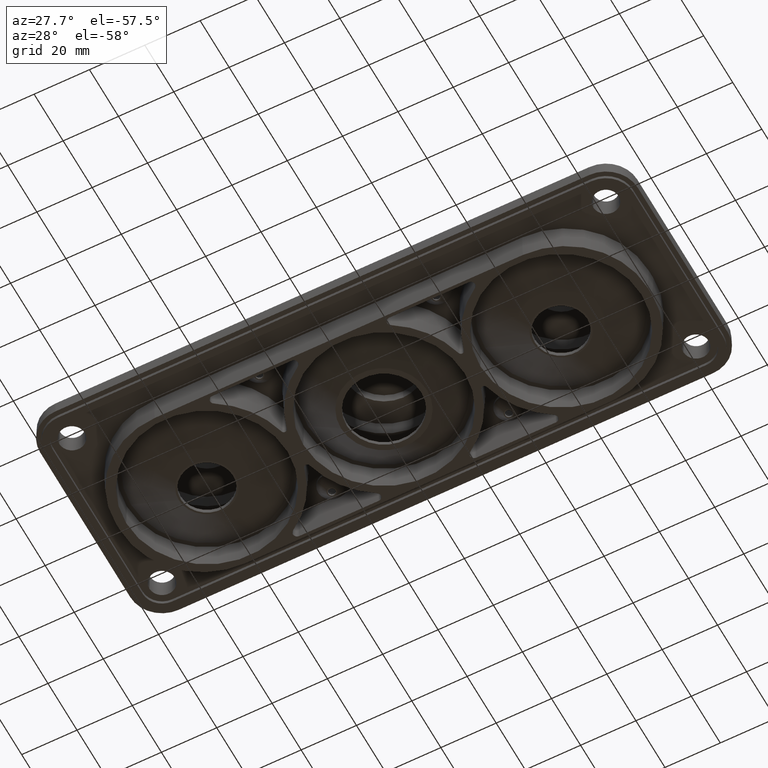
[diagram: clean part render]
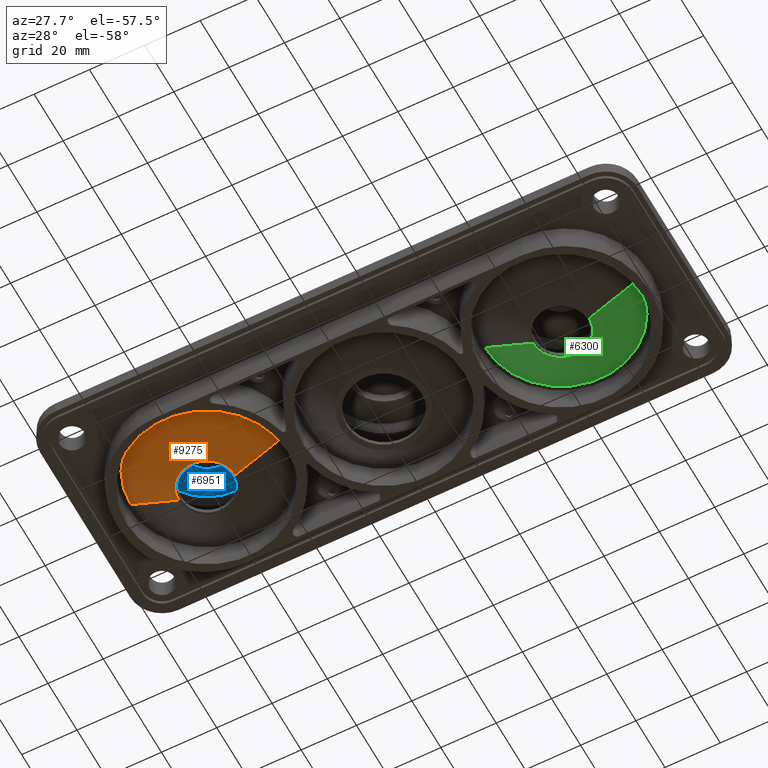
[diagram: same view with three faces highlighted in distinct colors, each labeled with its STEP entity id]
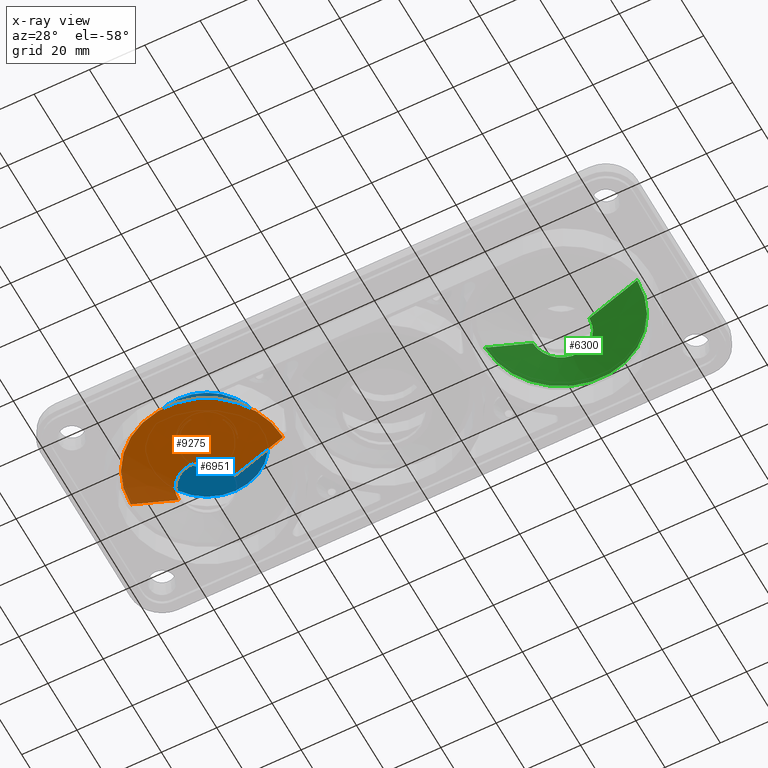
[diagram: x-ray of the same camera — body ghosted, the three highlighted faces saturated]
A machine part, auxiliary view with three faces highlighted in distinct colors.
The next image is the same camera in x-ray (body ghosted, the three faces saturated) — at least one of them is partly hidden behind the body in this view.
Their STEP definitions:

[orange] entity #9275 — the highlighted conical surface has half-angle 60 deg.
#1102 = DIRECTION ( 'NONE',  ( 0.0000000000000000000, -0.0000000000000000000, 1.000000000000000000 ) ) ;
#1393 = AXIS2_PLACEMENT_3D ( 'NONE', #3083, #4703, #5457 ) ;
#1728 = ORIENTED_EDGE ( 'NONE', *, *, #5568, .F. ) ;
#1838 = AXIS2_PLACEMENT_3D ( 'NONE', #5201, #2955, #8267 ) ;
#2141 = VECTOR ( 'NONE', #6616, 1000.000000000000100 ) ;
#2161 = LINE ( 'NONE', #8777, #8943 ) ;
#2401 = FACE_OUTER_BOUND ( 'NONE', #9833, .T. ) ;
#2955 = DIRECTION ( 'NONE',  ( -0.0000000000000000000, 0.0000000000000000000, -1.000000000000000000 ) ) ;
#3032 = CIRCLE ( 'NONE', #1393, 10.17949192431123800 ) ;
#3083 = CARTESIAN_POINT ( 'NONE',  ( 58.53819617907976900, 259.8491220038597500, -10.00000000000000200 ) ) ;
#3230 = CONICAL_SURFACE ( 'NONE', #9699, 27.50000000000001100, 1.047197551196597400 ) ;
#3274 = EDGE_CURVE ( 'NONE', #4058, #7190, #3032, .T. ) ;
#3683 = LINE ( 'NONE', #5913, #2141 ) ;
#4058 = VERTEX_POINT ( 'NONE', #4564 ) ;
#4166 = DIRECTION ( 'NONE',  ( 1.000000000000000000, 0.0000000000000000000, 0.0000000000000000000 ) ) ;
#4564 = CARTESIAN_POINT ( 'NONE',  ( 48.35870425476852600, 259.8491220038597500, -10.00000000000000200 ) ) ;
#4703 = DIRECTION ( 'NONE',  ( 0.0000000000000000000, -0.0000000000000000000, 1.000000000000000000 ) ) ;
#4906 = DIRECTION ( 'NONE',  ( -0.8660254037844383700, 1.060575238724906500E-016, 0.5000000000000003300 ) ) ;
#5201 = CARTESIAN_POINT ( 'NONE',  ( 58.53819617907976900, 259.8491220038597500, 3.025293974139501800E-015 ) ) ;
#5457 = DIRECTION ( 'NONE',  ( 1.000000000000000000, 0.0000000000000000000, 0.0000000000000000000 ) ) ;
#5568 = EDGE_CURVE ( 'NONE', #4058, #8293, #2161, .T. ) ;
#5877 = CARTESIAN_POINT ( 'NONE',  ( 31.03819617907976200, 259.8491220038597500, 3.025293974139501800E-015 ) ) ;
#5913 = CARTESIAN_POINT ( 'NONE',  ( 86.03819617907977600, 259.8491220038597500, 7.031466237438596000E-015 ) ) ;
#6179 = CARTESIAN_POINT ( 'NONE',  ( 86.03819617907976200, 259.8491220038597500, 3.025293974139501800E-015 ) ) ;
#6414 = ORIENTED_EDGE ( 'NONE', *, *, #9668, .T. ) ;
#6542 = ORIENTED_EDGE ( 'NONE', *, *, #3274, .T. ) ;
#6616 = DIRECTION ( 'NONE',  ( 0.8660254037844383700, 0.0000000000000000000, 0.5000000000000003300 ) ) ;
#6673 = CIRCLE ( 'NONE', #1838, 27.49999999999999600 ) ;
#7190 = VERTEX_POINT ( 'NONE', #7814 ) ;
#7814 = CARTESIAN_POINT ( 'NONE',  ( 68.71768810339099800, 259.8491220038597500, -10.00000000000000200 ) ) ;
#7881 = ORIENTED_EDGE ( 'NONE', *, *, #8011, .T. ) ;
#8011 = EDGE_CURVE ( 'NONE', #9584, #8293, #6673, .T. ) ;
#8267 = DIRECTION ( 'NONE',  ( 1.000000000000000000, 0.0000000000000000000, 0.0000000000000000000 ) ) ;
#8293 = VERTEX_POINT ( 'NONE', #5877 ) ;
#8656 = CARTESIAN_POINT ( 'NONE',  ( 58.53819617907976900, 259.8491220038597500, 7.031466237438596000E-015 ) ) ;
#8777 = CARTESIAN_POINT ( 'NONE',  ( 31.03819617907975500, 259.8491220038597500, 7.031466237438596000E-015 ) ) ;
#8943 = VECTOR ( 'NONE', #4906, 1000.000000000000100 ) ;
#9275 = ADVANCED_FACE ( 'NONE', ( #2401 ), #3230, .T. ) ;
#9584 = VERTEX_POINT ( 'NONE', #6179 ) ;
#9668 = EDGE_CURVE ( 'NONE', #7190, #9584, #3683, .T. ) ;
#9699 = AXIS2_PLACEMENT_3D ( 'NONE', #8656, #1102, #4166 ) ;
#9833 = EDGE_LOOP ( 'NONE', ( #1728, #6542, #6414, #7881 ) ) ;

[blue] entity #6951 — the highlighted planar face has unit normal (0, 0, 1).
#216 = FACE_BOUND ( 'NONE', #816, .T. ) ;
#596 = AXIS2_PLACEMENT_3D ( 'NONE', #2111, #4372, #2851 ) ;
#662 = PLANE ( 'NONE',  #4192 ) ;
#801 = EDGE_CURVE ( 'NONE', #9273, #1055, #5809, .T. ) ;
#816 = EDGE_LOOP ( 'NONE', ( #8688, #4920 ) ) ;
#909 = CARTESIAN_POINT ( 'NONE',  ( 58.53819617907976900, 259.8491220038597500, 15.50000000000001400 ) ) ;
#946 = CARTESIAN_POINT ( 'NONE',  ( 58.53819617907976900, 268.8776916157211200, 15.50000000000001400 ) ) ;
#1055 = VERTEX_POINT ( 'NONE', #946 ) ;
#1396 = DIRECTION ( 'NONE',  ( 1.000000000000000000, 0.0000000000000000000, -0.0000000000000000000 ) ) ;
#1560 = AXIS2_PLACEMENT_3D ( 'NONE', #909, #4598, #2418 ) ;
#1951 = CARTESIAN_POINT ( 'NONE',  ( 58.53819617907976900, 250.8205523919983500, 15.50000000000001400 ) ) ;
#2008 = DIRECTION ( 'NONE',  ( 0.0000000000000000000, 1.000000000000000000, 0.0000000000000000000 ) ) ;
#2111 = CARTESIAN_POINT ( 'NONE',  ( 58.53819617907976900, 259.8491220038597500, 15.50000000000001400 ) ) ;
#2137 = AXIS2_PLACEMENT_3D ( 'NONE', #8309, #9087, #5984 ) ;
#2418 = DIRECTION ( 'NONE',  ( 0.0000000000000000000, 1.000000000000000000, 0.0000000000000000000 ) ) ;
#2825 = ORIENTED_EDGE ( 'NONE', *, *, #3467, .T. ) ;
#2851 = DIRECTION ( 'NONE',  ( 0.0000000000000000000, 1.000000000000000000, 0.0000000000000000000 ) ) ;
#3210 = EDGE_CURVE ( 'NONE', #1055, #9273, #3988, .T. ) ;
#3467 = EDGE_CURVE ( 'NONE', #9646, #8054, #8126, .T. ) ;
#3856 = CARTESIAN_POINT ( 'NONE',  ( 58.53819617907976900, 240.1196755102471100, 15.50000000000006900 ) ) ;
#3988 = CIRCLE ( 'NONE', #1560, 9.028569611861382100 ) ;
#4139 = ORIENTED_EDGE ( 'NONE', *, *, #4895, .T. ) ;
#4192 = AXIS2_PLACEMENT_3D ( 'NONE', #9091, #5988, #1396 ) ;
#4358 = CARTESIAN_POINT ( 'NONE',  ( 58.53819617907976900, 279.5785684974723600, 15.50000000000006900 ) ) ;
#4372 = DIRECTION ( 'NONE',  ( 0.0000000000000000000, 9.606856625980890600E-017, -1.000000000000000000 ) ) ;
#4598 = DIRECTION ( 'NONE',  ( 0.0000000000000000000, 9.606856625980890600E-017, -1.000000000000000000 ) ) ;
#4895 = EDGE_CURVE ( 'NONE', #8054, #9646, #6231, .T. ) ;
#4920 = ORIENTED_EDGE ( 'NONE', *, *, #801, .F. ) ;
#5057 = AXIS2_PLACEMENT_3D ( 'NONE', #5075, #9551, #2008 ) ;
#5075 = CARTESIAN_POINT ( 'NONE',  ( 58.53819617907976900, 259.8491220038597500, 15.50000000000006900 ) ) ;
#5809 = CIRCLE ( 'NONE', #596, 9.028569611861382100 ) ;
#5984 = DIRECTION ( 'NONE',  ( 0.0000000000000000000, 1.000000000000000000, 0.0000000000000000000 ) ) ;
#5988 = DIRECTION ( 'NONE',  ( 0.0000000000000000000, 0.0000000000000000000, 1.000000000000000000 ) ) ;
#6231 = CIRCLE ( 'NONE', #5057, 19.72944649361263500 ) ;
#6650 = EDGE_LOOP ( 'NONE', ( #2825, #4139 ) ) ;
#6737 = FACE_OUTER_BOUND ( 'NONE', #6650, .T. ) ;
#6951 = ADVANCED_FACE ( 'NONE', ( #6737, #216 ), #662, .F. ) ;
#8054 = VERTEX_POINT ( 'NONE', #3856 ) ;
#8126 = CIRCLE ( 'NONE', #2137, 19.72944649361263500 ) ;
#8309 = CARTESIAN_POINT ( 'NONE',  ( 58.53819617907976900, 259.8491220038597500, 15.50000000000006900 ) ) ;
#8688 = ORIENTED_EDGE ( 'NONE', *, *, #3210, .F. ) ;
#9087 = DIRECTION ( 'NONE',  ( 0.0000000000000000000, 4.374991570907314600E-017, -1.000000000000000000 ) ) ;
#9091 = CARTESIAN_POINT ( 'NONE',  ( 78.53819617907977600, 259.8491220038597500, 15.50000000000000000 ) ) ;
#9273 = VERTEX_POINT ( 'NONE', #1951 ) ;
#9551 = DIRECTION ( 'NONE',  ( 0.0000000000000000000, 4.374991570907314600E-017, -1.000000000000000000 ) ) ;
#9646 = VERTEX_POINT ( 'NONE', #4358 ) ;

[green] entity #6300 — the highlighted conical surface has half-angle 60 deg.
#91 = ORIENTED_EDGE ( 'NONE', *, *, #186, .F. ) ;
#186 = EDGE_CURVE ( 'NONE', #5922, #6131, #9642, .T. ) ;
#283 = EDGE_CURVE ( 'NONE', #4528, #4459, #3217, .T. ) ;
#329 = DIRECTION ( 'NONE',  ( 0.0000000000000000000, -0.0000000000000000000, 1.000000000000000000 ) ) ;
#599 = EDGE_CURVE ( 'NONE', #5922, #4528, #6422, .T. ) ;
#820 = CARTESIAN_POINT ( 'NONE',  ( 214.0381961790797300, 259.8491220038597500, -1.602468905319637700E-014 ) ) ;
#887 = AXIS2_PLACEMENT_3D ( 'NONE', #6391, #329, #1034 ) ;
#1034 = DIRECTION ( 'NONE',  ( 1.000000000000000000, 0.0000000000000000000, 0.0000000000000000000 ) ) ;
#1214 = VECTOR ( 'NONE', #7626, 1000.000000000000100 ) ;
#1795 = DIRECTION ( 'NONE',  ( 1.000000000000000000, 0.0000000000000000000, 0.0000000000000000000 ) ) ;
#1877 = AXIS2_PLACEMENT_3D ( 'NONE', #7879, #8625, #1795 ) ;
#2037 = DIRECTION ( 'NONE',  ( 0.0000000000000000000, -0.0000000000000000000, 1.000000000000000000 ) ) ;
#2397 = ORIENTED_EDGE ( 'NONE', *, *, #283, .T. ) ;
#3217 = LINE ( 'NONE', #9177, #1214 ) ;
#3350 = CIRCLE ( 'NONE', #1877, 27.49999999999996800 ) ;
#3476 = EDGE_LOOP ( 'NONE', ( #3874, #2397, #4599, #91 ) ) ;
#3874 = ORIENTED_EDGE ( 'NONE', *, *, #599, .T. ) ;
#4183 = CONICAL_SURFACE ( 'NONE', #887, 27.49999999999999600, 1.047197551196597400 ) ;
#4285 = FACE_OUTER_BOUND ( 'NONE', #3476, .T. ) ;
#4452 = CARTESIAN_POINT ( 'NONE',  ( 214.0381961790797600, 259.8491220038597500, 0.0000000000000000000 ) ) ;
#4459 = VERTEX_POINT ( 'NONE', #6684 ) ;
#4528 = VERTEX_POINT ( 'NONE', #6021 ) ;
#4586 = AXIS2_PLACEMENT_3D ( 'NONE', #6478, #2037, #4950 ) ;
#4599 = ORIENTED_EDGE ( 'NONE', *, *, #5972, .T. ) ;
#4950 = DIRECTION ( 'NONE',  ( 1.000000000000000000, 0.0000000000000000000, 0.0000000000000000000 ) ) ;
#5553 = CARTESIAN_POINT ( 'NONE',  ( 196.7176881033910000, 259.8491220038597500, -10.00000000000000900 ) ) ;
#5922 = VERTEX_POINT ( 'NONE', #5553 ) ;
#5972 = EDGE_CURVE ( 'NONE', #4459, #6131, #3350, .T. ) ;
#6021 = CARTESIAN_POINT ( 'NONE',  ( 176.3587042547685500, 259.8491220038597500, -10.00000000000000900 ) ) ;
#6131 = VERTEX_POINT ( 'NONE', #820 ) ;
#6300 = ADVANCED_FACE ( 'NONE', ( #4285 ), #4183, .T. ) ;
#6391 = CARTESIAN_POINT ( 'NONE',  ( 186.5381961790797600, 259.8491220038597500, 0.0000000000000000000 ) ) ;
#6422 = CIRCLE ( 'NONE', #4586, 10.17949192431122400 ) ;
#6478 = CARTESIAN_POINT ( 'NONE',  ( 186.5381961790797600, 259.8491220038597500, -10.00000000000000900 ) ) ;
#6684 = CARTESIAN_POINT ( 'NONE',  ( 159.0381961790797900, 259.8491220038597500, -1.602468905319637700E-014 ) ) ;
#7626 = DIRECTION ( 'NONE',  ( -0.8660254037844383700, 1.060575238724906500E-016, 0.5000000000000003300 ) ) ;
#7720 = VECTOR ( 'NONE', #8174, 1000.000000000000100 ) ;
#7879 = CARTESIAN_POINT ( 'NONE',  ( 186.5381961790797600, 259.8491220038597500, -1.602468905319637700E-014 ) ) ;
#8174 = DIRECTION ( 'NONE',  ( 0.8660254037844383700, 0.0000000000000000000, 0.5000000000000003300 ) ) ;
#8625 = DIRECTION ( 'NONE',  ( -0.0000000000000000000, 0.0000000000000000000, -1.000000000000000000 ) ) ;
#9177 = CARTESIAN_POINT ( 'NONE',  ( 159.0381961790797600, 259.8491220038597500, 0.0000000000000000000 ) ) ;
#9642 = LINE ( 'NONE', #4452, #7720 ) ;